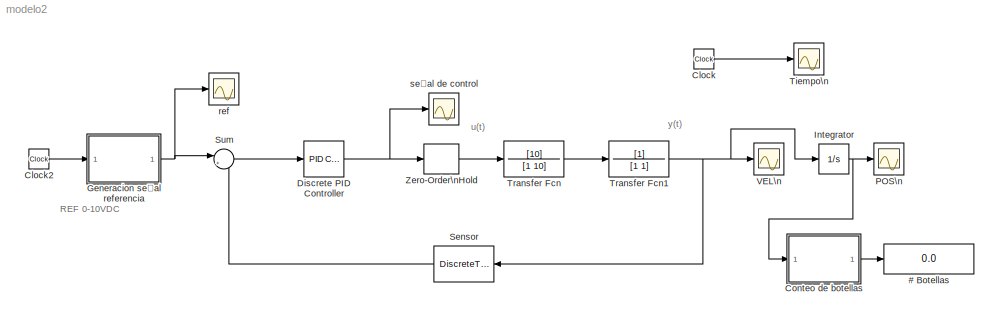
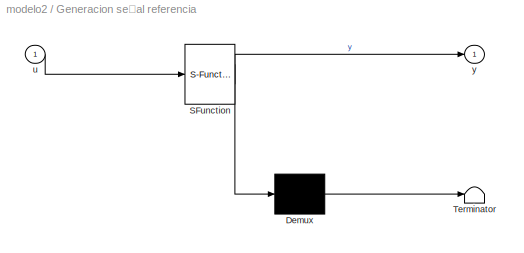
MODEL modelo2
KIND model
BLOCK [Display] # Botellas
  Decimation = 1
  Ports = [1]
  SID = 31
BLOCK [Clock] Clock
  SID = 11
BLOCK [Clock] Clock2
  SID = 26
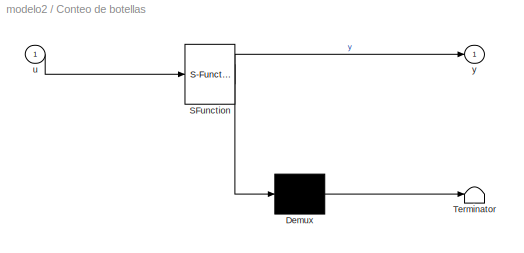
BLOCK [SubSystem] Conteo de botellas
  ErrorFcn = Stateflow.Translate.translate
  PermitHierarchicalResolution = ExplicitOnly
  Ports = [1, 1]
  RequestExecContextInheritance = off
  SFBlockType = MATLAB Function
  SID = 32
  TreatAsAtomicUnit = on
BLOCK [Demux] Conteo de botellas/ Demux 
  Outputs = 1
  Ports = [1, 1]
  SID = 32::17
BLOCK [S-Function] Conteo de botellas/ SFunction 
  EnableBusSupport = on
  FunctionName = sf_sfun
  PortCounts = [1 2]
  Ports = [1, 2]
  SID = 32::16
  Tag = Stateflow S-Function modelo2 1
BLOCK [Terminator] Conteo de botellas/ Terminator 
  SID = 32::18
BLOCK [Inport] Conteo de botellas/u
  IconDisplay = Port number
  SID = 32::1
BLOCK [Outport] Conteo de botellas/y
  IconDisplay = Port number
  SID = 32::5
BLOCK [Reference] Discrete PID Controller  REF=simulink/Continuous/PID Controller
  AntiWindupMode = none
  Controller = PI
  ControllerParametersSource = internal
  D = 0
  DGainOutDataTypeStr = Inherit: Inherit via internal rule
  DOutDataTypeStr = Inherit: Inherit via internal rule
  DOutMax = []
  DOutMin = []
  DParamDataTypeStr = Inherit: Inherit via internal rule
  DParamMax = []
  DParamMin = []
  DProdOutDataTypeStr = Inherit: Inherit via internal rule
  DifferentiatorICPrevScaledInput = 0
  DifferentiatorOutDataTypeStr = Inherit: Inherit via internal rule
  DifferentiatorOutMax = []
  DifferentiatorOutMin = []
  ExternalReset = none
  FilterContinuousStateAttributes = ''
  FilterMethod = Forward Euler
  FilterOutDataTypeStr = Inherit: Inherit via internal rule
  FilterOutMax = []
  FilterOutMin = []
  FilterRTWStateStorageClass = Auto
  FilterStateMustResolveToSignalObject = off
  Form = Parallel
  I = 0.5881
  IGainOutDataTypeStr = Inherit: Inherit via internal rule
  IOutDataTypeStr = Inherit: Inherit via internal rule
  IOutMax = []
  IOutMin = []
  IParamDataTypeStr = Inherit: Inherit via internal rule
  IParamMax = []
  IParamMin = []
  IProdOutDataTypeStr = Inherit: Inherit via internal rule
  IgnoreLimit = off
  InitialConditionForFilter = 0
  InitialConditionForIntegrator = 0
  InitialConditionSource = internal
  IntegratorContinuousStateAttributes = ''
  IntegratorMethod = Trapezoidal
  IntegratorOutDataTypeStr = Inherit: Inherit via internal rule
  IntegratorOutMax = []
  IntegratorOutMin = []
  IntegratorRTWStateStorageClass = Auto
  IntegratorStateMustResolveToSignalObject = off
  Kb = 1
  KbOutDataTypeStr = Inherit: Inherit via internal rule
  KbOutMax = []
  KbOutMin = []
  KbParamDataTypeStr = Inherit: Inherit via internal rule
  KbParamMax = []
  KbParamMin = []
  Kt = 1
  KtOutDataTypeStr = Inherit: Inherit via internal rule
  KtOutMax = []
  KtOutMin = []
  KtParamDataTypeStr = Inherit: Inherit via internal rule
  KtParamMax = []
  KtParamMin = []
  LimitOutput = off
  LinearizeAsGain = off
  LockScale = off
  LowerSaturationLimit = -inf
  N = 100
  NGainOutDataTypeStr = Inherit: Inherit via internal rule
  NOutDataTypeStr = Inherit: Inherit via internal rule
  NOutMax = []
  NOutMin = []
  NParamDataTypeStr = Inherit: Inherit via internal rule
  NParamMax = []
  NParamMin = []
  NProdOutDataTypeStr = Inherit: Inherit via internal rule
  P = 0.8511
  PGainOutDataTypeStr = Inherit: Inherit via internal rule
  POutDataTypeStr = Inherit: Inherit via internal rule
  POutMax = []
  POutMin = []
  PParamDataTypeStr = Inherit: Inherit via internal rule
  PParamMax = []
  PParamMin = []
  PProdOutDataTypeStr = Inherit: Inherit via internal rule
  Ports = [1, 1]
  RndMeth = Floor
  SID = 13
  SampleTime = T
  SaturateOnIntegerOverflow = off
  SaturationOutDataTypeStr = Inherit: Same as input
  SaturationOutMax = []
  SaturationOutMin = []
  SourceBlock = simulink/Continuous/PID Controller
  SourceType = PID 1dof
  SumAccumDataTypeStr = Inherit: Inherit via internal rule
  SumDAccumDataTypeStr = Inherit: Inherit via internal rule
  SumDOutDataTypeStr = Inherit: Inherit via internal rule
  SumDOutMax = []
  SumDOutMin = []
  SumI1AccumDataTypeStr = Inherit: Inherit via internal rule
  SumI1OutDataTypeStr = Inherit: Inherit via internal rule
  SumI1OutMax = []
  SumI1OutMin = []
  SumI2AccumDataTypeStr = Inherit: Inherit via internal rule
  SumI2OutDataTypeStr = Inherit: Inherit via internal rule
  SumI2OutMax = []
  SumI2OutMin = []
  SumI3AccumDataTypeStr = Inherit: Inherit via internal rule
  SumI3OutDataTypeStr = Inherit: Inherit via internal rule
  SumI3OutMax = []
  SumI3OutMin = []
  SumOutDataTypeStr = Inherit: Inherit via internal rule
  SumOutMax = []
  SumOutMin = []
  TimeDomain = Discrete-time
  TrackingMode = off
  UpperSaturationLimit = inf
  UseFilter = on
  ZeroCross = on
BLOCK [SubSystem] Generacion señal referencia 
  ErrorFcn = Stateflow.Translate.translate
  PermitHierarchicalResolution = ExplicitOnly
  Ports = [1, 1]
  RequestExecContextInheritance = off
  SFBlockType = MATLAB Function
  SID = 25
  TreatAsAtomicUnit = on
BLOCK [Demux] Generacion señal referencia / Demux 
  Outputs = 1
  Ports = [1, 1]
  SID = 25::17
BLOCK [S-Function] Generacion señal referencia / SFunction 
  EnableBusSupport = on
  FunctionName = sf_sfun
  PortCounts = [1 2]
  Ports = [1, 2]
  SID = 25::16
  Tag = Stateflow S-Function modelo2 2
BLOCK [Terminator] Generacion señal referencia / Terminator 
  SID = 25::18
BLOCK [Inport] Generacion señal referencia /u
  IconDisplay = Port number
  SID = 25::1
BLOCK [Outport] Generacion señal referencia /y
  IconDisplay = Port number
  SID = 25::5
BLOCK [Integrator] Integrator
  Ports = [1, 1]
  SID = 14
BLOCK [Scope] POS\n
  Floating = off
  LimitDataPoints = off
  NumInputPorts = 1
  Ports = [1]
  SID = 15
  SaveName = pos
  SaveToWorkspace = on
  YMax = 13.5
  YMin = 11
BLOCK [DiscreteTransferFcn] Sensor
  Denominator = [1]
  InputPortMap = u0
  Numerator = [Hz]
  Ports = [1, 1]
  SID = 5
  SampleTime = T
BLOCK [Sum] Sum
  IconShape = round
  InputSameDT = off
  Inputs = |+-
  OutDataTypeStr = Inherit: Inherit via internal rule
  Ports = [2, 1]
  SID = 6
  SaturateOnIntegerOverflow = off
BLOCK [Scope] Tiempo\n
  Floating = off
  LimitDataPoints = off
  NumInputPorts = 1
  Ports = [1]
  SID = 12
  SaveName = tiempo
  SaveToWorkspace = on
  YMax = 11.25
  YMin = -1.25
BLOCK [TransferFcn] Transfer Fcn
  Denominator = [1 10]
  Numerator = [10]
  SID = 1
BLOCK [TransferFcn] Transfer Fcn1
  Denominator = [1 1]
  SID = 2
BLOCK [Scope] VEL\n
  Floating = off
  LimitDataPoints = off
  NumInputPorts = 1
  Ports = [1]
  SID = 8
  SaveName = y
  SaveToWorkspace = on
  YMax = 0.12652
  YMin = -0.01406
BLOCK [ZeroOrderHold] Zero-Order\nHold
  SID = 3
  SampleTime = T
BLOCK [Scope] ref
  Floating = off
  LimitDataPoints = off
  NumInputPorts = 1
  Ports = [1]
  SID = 9
  SaveName = r
  SaveToWorkspace = on
  TimeRange = 20
  YMax = 2.5
  YMin = 0
BLOCK [Scope] señal de control
  Floating = off
  LimitDataPoints = off
  NumInputPorts = 1
  Ports = [1]
  SID = 10
  SaveName = u
  SaveToWorkspace = on
  YMax = 0.96694
  YMin = -0.13264
ANNOTATION (root): REF 0-10VDC
ANNOTATION (root): u(t)
ANNOTATION (root): y(t)
LINE Clock2:1 -> Generacion señal referencia :1
LINE Clock:1 -> Tiempo\n:1
LINE Conteo de botellas/ Demux :1 -> Conteo de botellas/ Terminator :1
LINE Conteo de botellas/ SFunction :1 -> Conteo de botellas/ Demux :1
LINE Conteo de botellas/ SFunction :2 -> Conteo de botellas/y:1
LINE Conteo de botellas/u:1 -> Conteo de botellas/ SFunction :1
LINE Conteo de botellas:1 -> # Botellas:1
NET Discrete PID Controller:1 -> Zero-Order\nHold:1, señal de control:1
LINE Generacion señal referencia / Demux :1 -> Generacion señal referencia / Terminator :1
LINE Generacion señal referencia / SFunction :1 -> Generacion señal referencia / Demux :1
LINE Generacion señal referencia / SFunction :2 -> Generacion señal referencia /y:1
LINE Generacion señal referencia /u:1 -> Generacion señal referencia / SFunction :1
NET Generacion señal referencia :1 -> Sum:1, ref:1
NET Integrator:1 -> Conteo de botellas:1, POS\n:1
LINE Sensor:1 -> Sum:2
LINE Sum:1 -> Discrete PID Controller:1
NET Transfer Fcn1:1 -> Integrator:1, Sensor:1, VEL\n:1
LINE Transfer Fcn:1 -> Transfer Fcn1:1
LINE Zero-Order\nHold:1 -> Transfer Fcn:1
note: NET lines group one-source signal fan-out (src -> all destinations, sorted); 1:1 wires keep LINE
CHART Conteo de botellas states=1 transitions=1
  STATE_LABEL 'eML_blk_kernel()'
CHART Generacion señal referencia  states=1 transitions=1
  STATE_LABEL 'eML_blk_kernel()'
